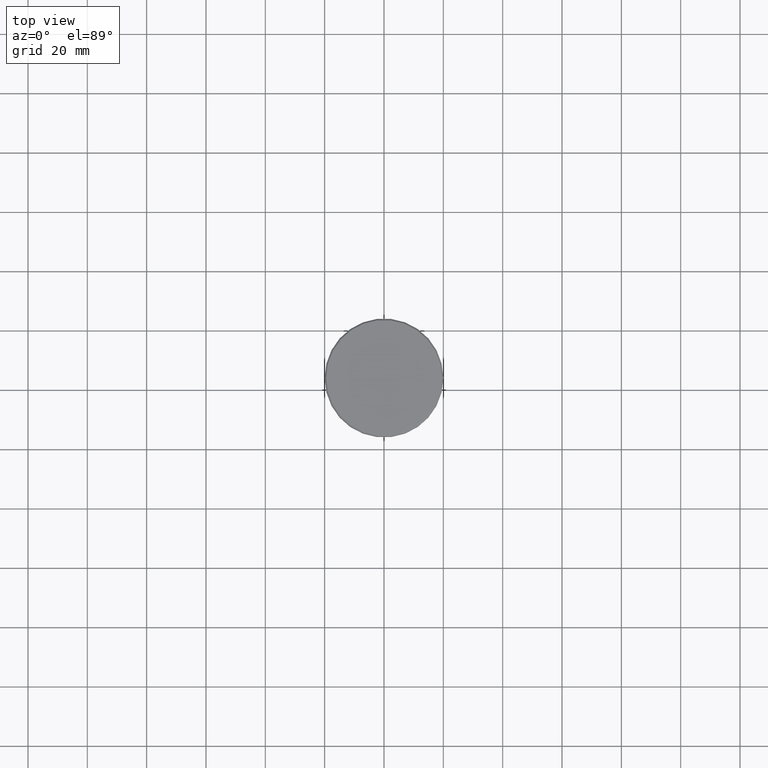
[diagram: clean part render]
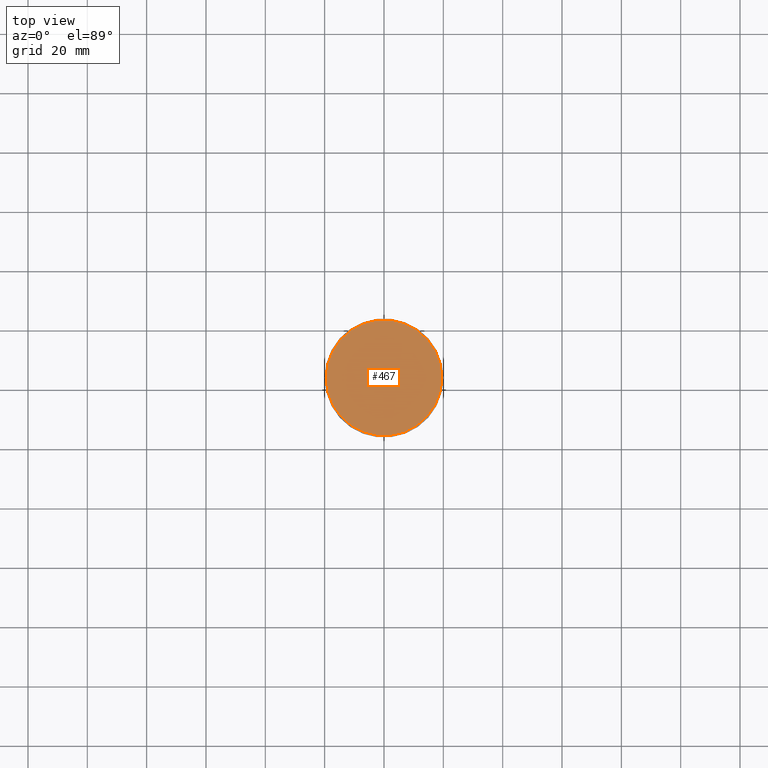
[diagram: same view with one face highlighted and labeled with its STEP entity id]
A machine part, top view. The second image highlights one B-rep face of the part: STEP entity #467.
In plain terms, the highlighted planar face has unit normal (0, -0, 1).
Its self-contained STEP definition (entity closure, byte-faithful):
#103 = ORIENTED_EDGE ( 'NONE', *, *, #678, .T. ) ;
#165 = FACE_OUTER_BOUND ( 'NONE', #621, .T. ) ;
#169 = CIRCLE ( 'NONE', #417, 19.50000000000001776 ) ;
#218 = CARTESIAN_POINT ( 'NONE',  ( 19.50000000000001776, 2.418677428316023515E-15, 0.000000000000000000 ) ) ;
#222 = DIRECTION ( 'NONE',  ( -0.000000000000000000, -0.000000000000000000, 1.000000000000000000 ) ) ;
#279 = DIRECTION ( 'NONE',  ( 1.000000000000000000, 0.000000000000000000, 0.000000000000000000 ) ) ;
#329 = VERTEX_POINT ( 'NONE', #218 ) ;
#382 = CARTESIAN_POINT ( 'NONE',  ( 0.000000000000000000, 0.000000000000000000, 0.000000000000000000 ) ) ;
#417 = AXIS2_PLACEMENT_3D ( 'NONE', #1183, #917, #279 ) ;
#427 = ORIENTED_EDGE ( 'NONE', *, *, #854, .T. ) ;
#467 = ADVANCED_FACE ( 'NONE', ( #165 ), #773, .T. ) ;
#504 = AXIS2_PLACEMENT_3D ( 'NONE', #1141, #1048, #976 ) ;
#599 = AXIS2_PLACEMENT_3D ( 'NONE', #382, #222, #836 ) ;
#621 = EDGE_LOOP ( 'NONE', ( #427, #103 ) ) ;
#678 = EDGE_CURVE ( 'NONE', #329, #891, #169, .T. ) ;
#773 = PLANE ( 'NONE',  #504 ) ;
#836 = DIRECTION ( 'NONE',  ( 1.000000000000000000, 0.000000000000000000, 0.000000000000000000 ) ) ;
#854 = EDGE_CURVE ( 'NONE', #891, #329, #1097, .T. ) ;
#891 = VERTEX_POINT ( 'NONE', #1017 ) ;
#917 = DIRECTION ( 'NONE',  ( -0.000000000000000000, -0.000000000000000000, 1.000000000000000000 ) ) ;
#976 = DIRECTION ( 'NONE',  ( 1.000000000000000000, 0.000000000000000000, 0.000000000000000000 ) ) ;
#1017 = CARTESIAN_POINT ( 'NONE',  ( -19.50000000000001776, 0.000000000000000000, 0.000000000000000000 ) ) ;
#1048 = DIRECTION ( 'NONE',  ( 0.000000000000000000, -0.000000000000000000, 1.000000000000000000 ) ) ;
#1097 = CIRCLE ( 'NONE', #599, 19.50000000000001776 ) ;
#1141 = CARTESIAN_POINT ( 'NONE',  ( 0.000000000000000000, 0.000000000000000000, 0.000000000000000000 ) ) ;
#1183 = CARTESIAN_POINT ( 'NONE',  ( 0.000000000000000000, 0.000000000000000000, 0.000000000000000000 ) ) ;